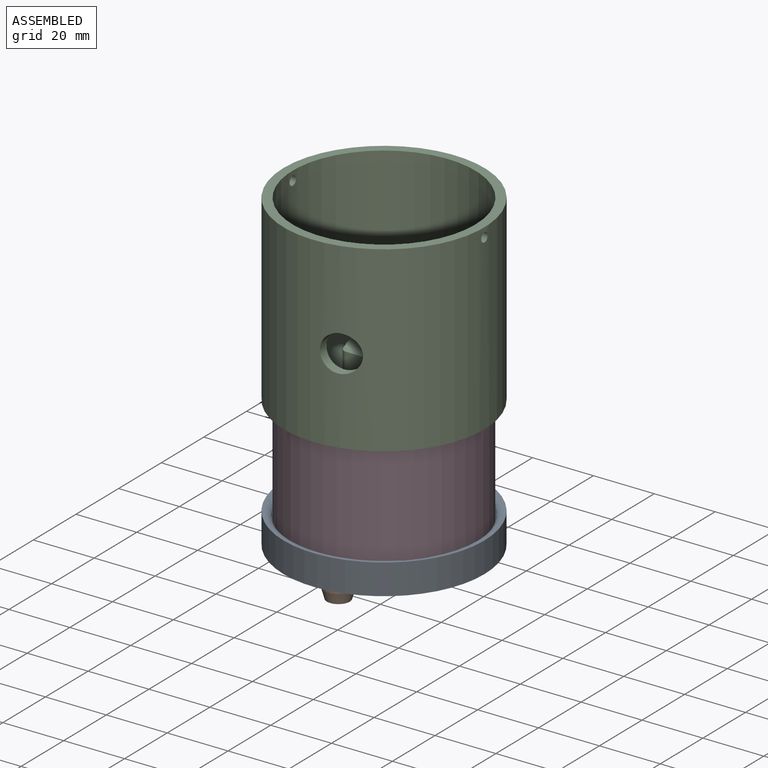
[diagram: assembled view]
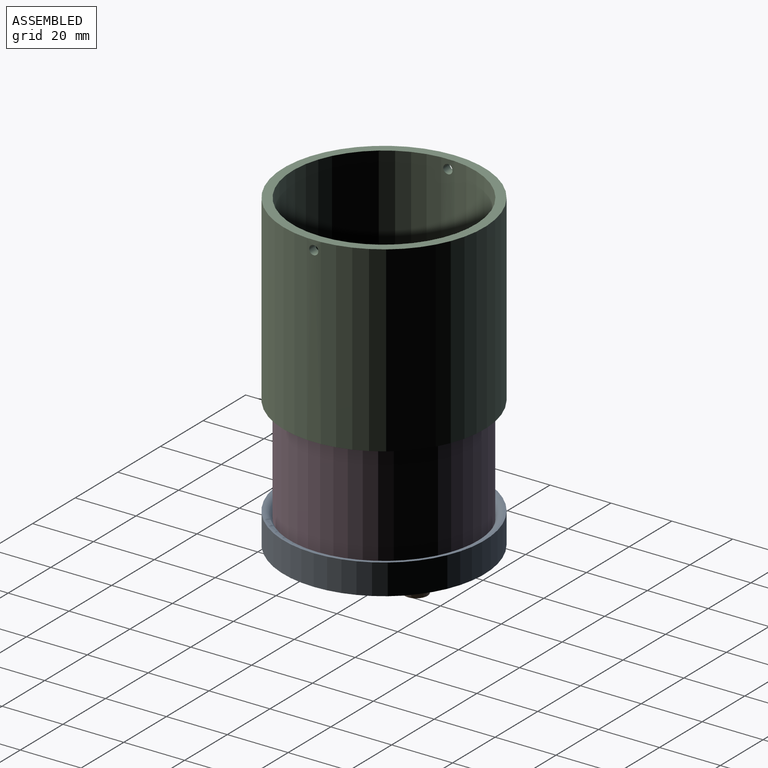
[diagram: assembled view, second angle]
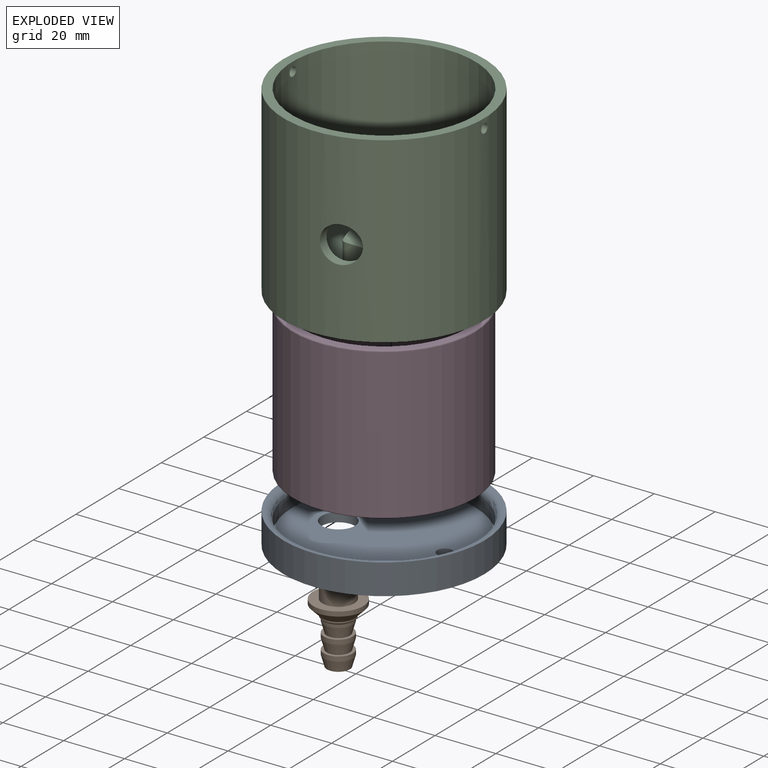
[diagram: exploded view]
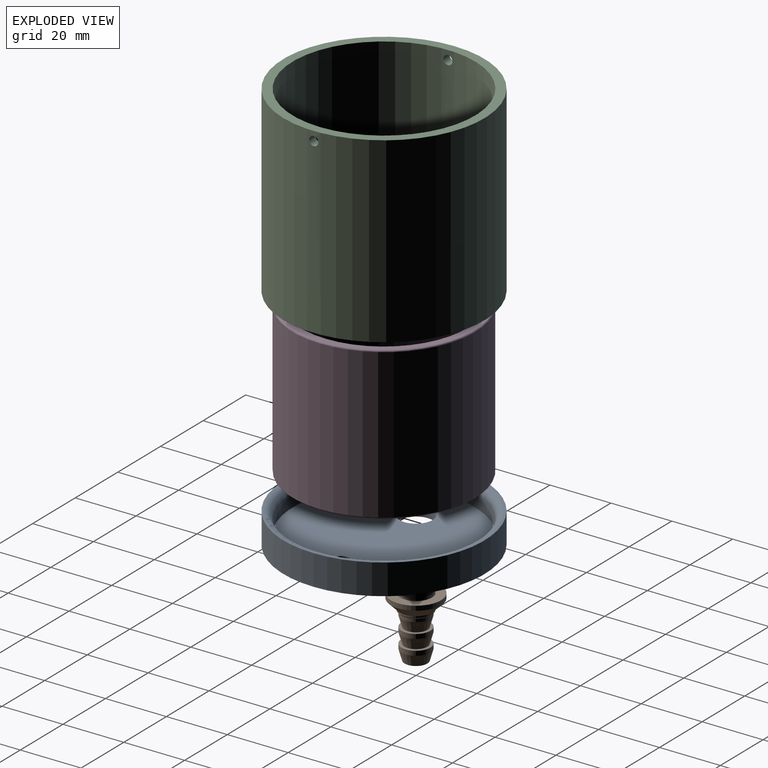
[diagram: exploded view, second angle]
ASSEMBLY  parts=4 mates=6
PART A: 8 faces, bbox 70.4x70.4x10 mm
  f0: cylinder r=33mm len=66mm, axis (0,0,-1), area 2073.5mm2, adj f1,f2
  f1: plane 66x66mm, normal (0,0,1), area 102.9mm2, adj f0,f5
  f2: plane 66x66mm, normal (0,0,-1), area 3306.5mm2, adj f0,f6,f7
  f3: cylinder r=30mm len=60mm, axis (0,0,1), area 848.2mm2, adj f4,f5
  f4: plane 60x60mm, normal (0,0,1), area 2712.8mm2, adj f3,f6,f7
  f5: torus R=32.5mm, axis (0,0,1), area 762.6mm2, adj f1,f3
  f6: cylinder r=2.5mm len=5mm, axis (0,0,1), area 47.1mm2, adj f2,f4
  f7: cylinder r=5.5mm len=11mm, axis (0,0,1), area 103.7mm2, adj f2,f4
PART B: 17 faces, bbox 16.5x16.5x25 mm
  f0: cylinder r=5.25mm len=10.5mm, axis (0,0,-1), area 16.5mm2, adj f15,f16
  f1: plane 7.5x7.5mm, normal (0,0,1), area 15.9mm2, adj f3,f14
  f2: cylinder r=5.25mm len=10.5mm, axis (0,0,-1), area 164.9mm2, adj f4,f6
  f3: cylinder r=3mm len=25mm, axis (0,0,-1), area 471.2mm2, adj f1,f4
  f4: plane 10.5x10.5mm, normal (0,0,-1), area 58.3mm2, adj f2,f3
  f5: cylinder r=8.25mm len=16.5mm, axis (0,0,-1), area 77.8mm2, adj f6,f15
  f6: plane 16.5x16.5mm, normal (0,0,-1), area 127.2mm2, adj f2,f5
  f7: cylinder r=4.75mm len=9.5mm, axis (0,0,1), area 29.8mm2, adj f8,f16
  f8: cone r=3.75mm half-angle=15.9deg, axis (0,0,-1), area 97.2mm2, adj f7,f9
  f9: plane 9.5x9.5mm, normal (0,0,-1), area 26.7mm2, adj f8,f10
  f10: cylinder r=4.75mm len=9.5mm, axis (0,0,1), area 44.8mm2, adj f9,f11
  f11: cone r=3.75mm half-angle=15.9deg, axis (0,0,-1), area 97.2mm2, adj f10,f12
  f12: plane 9.5x9.5mm, normal (0,0,-1), area 26.7mm2, adj f11,f13
  f13: cylinder r=4.75mm len=9.5mm, axis (0,0,1), area 44.8mm2, adj f12,f14
  f14: cone r=3.75mm half-angle=15.9deg, axis (0,0,-1), area 97.2mm2, adj f1,f13
  f15: cone r=5.25mm half-angle=45deg, axis (0,0,-1), area 179.9mm2, adj f0,f5
  f16: cone r=4.75mm half-angle=45deg, axis (0,0,-1), area 22.2mm2, adj f0,f7
PART C: 24 faces, bbox 67.1x67.1x60 mm
  f0: cylinder r=33mm len=66mm, axis (0,0,-1), area 12309.1mm2, adj f4,f5,f15,f22,f23
  f1: cylinder r=30mm len=60mm, axis (0,0,-1), area 8915.2mm2, adj f3,f5,f15,f22,f23
  f2: plane 13x13mm, normal (0,0,-1), area 28.9mm2, adj f8,f12
  f3: plane 60x60mm, normal (0,0,-1), area 2027.4mm2, adj f1,f9,f10,f11,f13,f16,f17,f18
  f4: plane 66x66mm, normal (0,0,1), area 402.1mm2, adj f0,f20
  f5: plane 66x66mm, normal (0,0,-1), area 593.8mm2, adj f0,f1
  f6: cylinder r=30mm len=60mm, axis (0,0,1), area 1131mm2, adj f20,f21
  f7: plane 54x54mm, normal (0,0,1), area 2186.4mm2, adj f8,f21
  f8: cylinder r=5.75mm len=11.5mm, axis (0,0,1), area 72.3mm2, adj f2,f7
  f9: plane 25.48x6mm, normal (0,-1,0), area 152.9mm2, adj f3,f14,f16,f19
  f10: cylinder r=27.54mm len=22.64mm, axis (0,0,1), area 140mm2, adj f3,f14,f16,f17
  f11: plane 25.48x6mm, normal (0,1,0), area 152.9mm2, adj f3,f14,f17,f18
  f12: cylinder r=6.5mm len=13mm, axis (0,0,1), area 245mm2, adj f2,f14
  f13: cylinder r=27.54mm len=22.64mm, axis (0,0,1), area 140mm2, adj f3,f14,f18,f19
  f14: plane 34x25mm, normal (0,0,-1), area 667.3mm2, adj f9,f10,f11,f12,f13,f16,f17,f18
  f15: cylinder r=6mm len=12mm, axis (0,1,0), area 118.4mm2, adj f0,f1
  f16: cylinder r=2mm len=6mm, axis (0,0,1), area 13.8mm2, adj f3,f9,f10,f14
  f17: cylinder r=2mm len=6mm, axis (0,0,1), area 13.8mm2, adj f3,f10,f11,f14
  f18: cylinder r=2mm len=6mm, axis (0,0,1), area 13.8mm2, adj f3,f11,f13,f14
  f19: cylinder r=2mm len=6mm, axis (0,0,1), area 13.8mm2, adj f3,f9,f13,f14
  f20: torus R=31mm, axis (0,0,1), area 299.7mm2, adj f4,f6
  f21: torus R=27mm, axis (0,0,1), area 856mm2, adj f6,f7
  f22: cylinder r=1.5mm len=3mm, axis (1,0,0), area 28.3mm2, adj f0,f1
  f23: cylinder r=1.5mm len=3mm, axis (1,0,0), area 28.3mm2, adj f0,f1
PART D: 8 faces, bbox 64.9x64.9x50 mm
  f0: cylinder r=30mm len=60mm, axis (0,0,-1), area 9236.3mm2, adj f6,f7
  f1: plane 59x59mm, normal (0,0,1), area 358.1mm2, adj f5,f7
  f2: plane 59x59mm, normal (0,0,-1), area 358.1mm2, adj f4,f6
  f3: cylinder r=27mm len=54mm, axis (0,0,1), area 8312.7mm2, adj f4,f5
  f4: torus R=27.5mm, axis (0,0,1), area 134.1mm2, adj f2,f3
  f5: torus R=27.5mm, axis (0,0,1), area 134.1mm2, adj f1,f3
  f6: torus R=29.5mm, axis (0,0,1), area 147.1mm2, adj f0,f2
  f7: torus R=29.5mm, axis (0,0,1), area 147.1mm2, adj f0,f1
PLACE A t=(-28.87,37.29,44.59)mm
PLACE B rot(axis=(0,1,0),180deg) t=(-43.87,37.29,49.59)mm
PLACE C rot(axis=(0,1,0),180deg) t=(-28.87,37.29,147.59)mm
PLACE D t=(-28.87,37.29,47.59)mm
MATE cylindrical B.f0 <-> A.f7  axis (0,0,1) through (-43.87,37.29,47.09)mm
MATE planar B.f5 <-> A.f2  axis (0,0,1) through (-43.87,37.29,44.59)mm
MATE cylindrical D.f0 <-> C.f1  axis (0,0,-1) through (-28.87,37.29,72.59)mm
MATE cylindrical D.f0 <-> A.f3  axis (0,0,-1) through (-28.87,37.29,72.59)mm
MATE planar D.f0 <-> A.f4  axis (0,0,-1) through (-28.87,37.29,47.59)mm
MATE planar D.f0 <-> C.f7  axis (0,0,1) through (-28.87,37.29,97.59)mm
